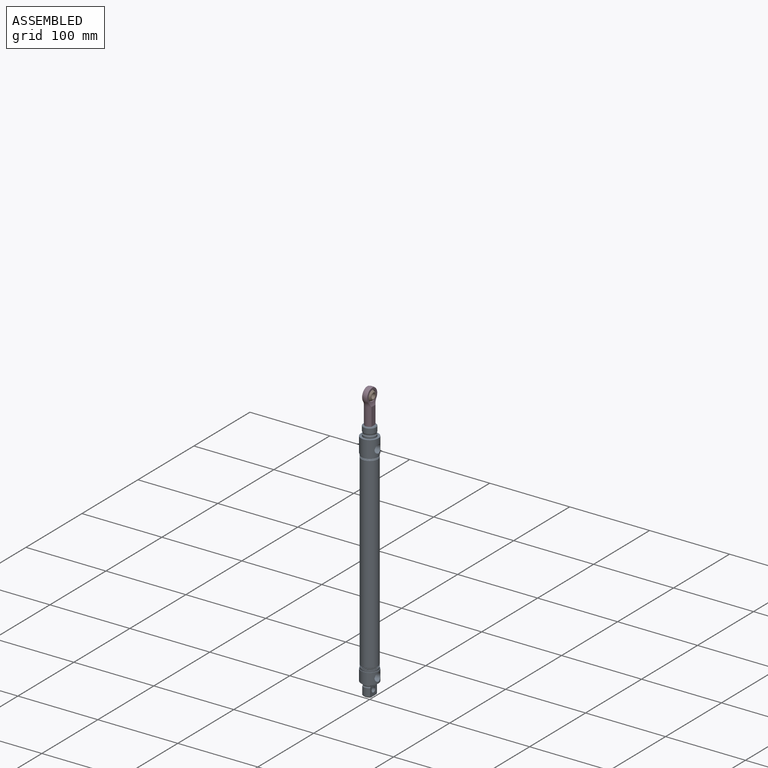
[diagram: assembled view]
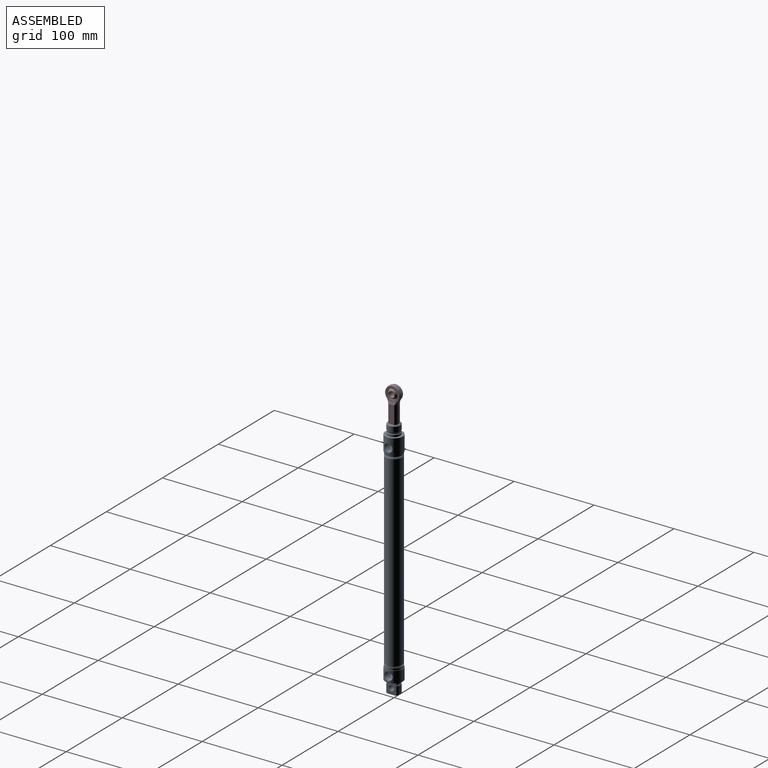
[diagram: assembled view, second angle]
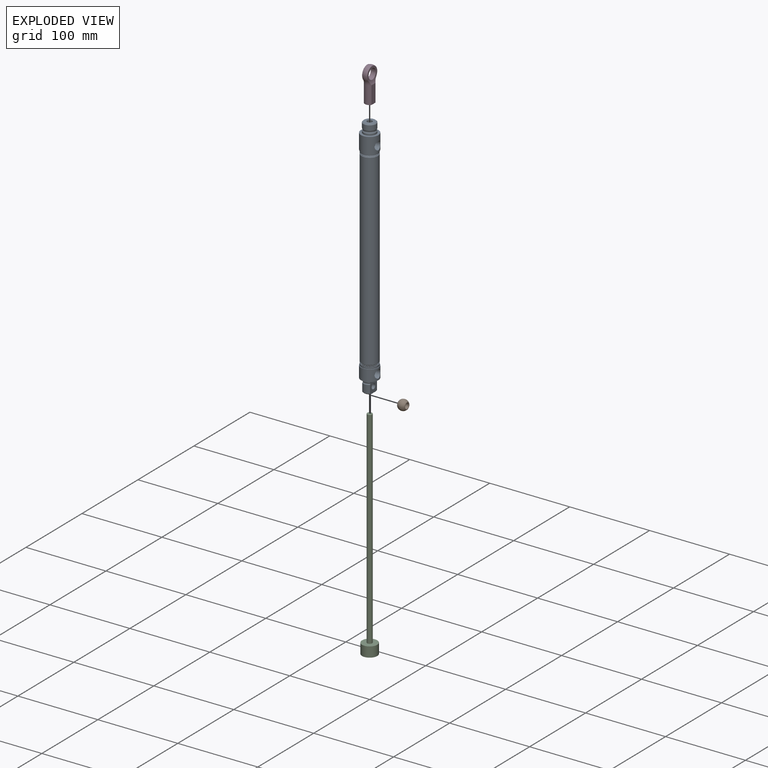
[diagram: exploded view]
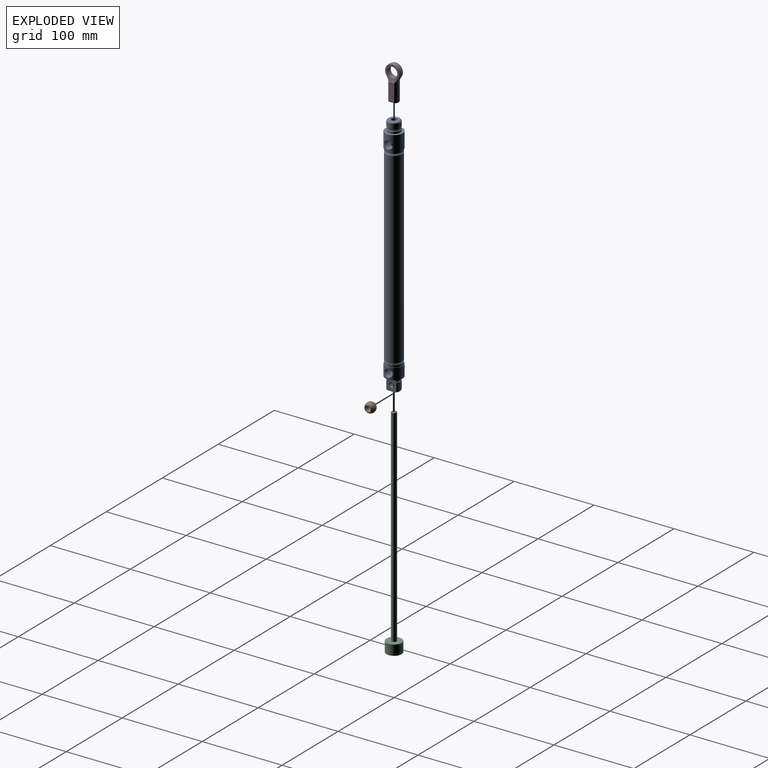
[diagram: exploded view, second angle]
ASSEMBLY  parts=4 mates=2
PART A: 50 faces, bbox 305.8x22.1x22.1 mm
  f0: torus R=8.49mm, axis (-1,0,0), area 29.4mm2, adj f1,f47,f48,f49
  f1: plane 15.97x12.83mm, normal (0,0,-1), area 162.4mm2, adj f0,f2,f3,f4,f5,f43,f44,f45
  f2: cylinder r=3.17mm len=9.65mm, axis (0,0,1), area 192.5mm2, adj f1,f48
  f3: torus R=8.49mm, axis (-1,0,0), area 29.4mm2, adj f1,f4,f46,f48
  f4: cylinder r=7.94mm len=9.65mm, axis (-1,0,0), area 25mm2, adj f1,f3,f5,f48
  f5: plane 21.84x21.84mm, normal (1,0,0), area 231.6mm2, adj f1,f4,f6,f48,f49
  f6: cylinder r=10.92mm len=21.84mm, axis (-1,0,0), area 891mm2, adj f5,f7,f11
  f7: cone r=5.14mm half-angle=1.7deg, axis (0,0,1), area 219.4mm2, adj f6,f8
  f8: plane 9.87x9.87mm, normal (0,0,1), area 20.7mm2, adj f7,f9
  f9: cylinder r=4.22mm len=8.43mm, axis (0,0,1), area 124.5mm2, adj f8,f10
  f10: cone r=4.22mm half-angle=59deg, axis (0,0,1), area 65.2mm2, adj f9
  f11: plane 21.84x21.84mm, normal (-1,0,0), area 42.3mm2, adj f6,f12
  f12: cylinder r=10.29mm len=20.57mm, axis (-1,0,0), area 164.2mm2, adj f11,f13
  f13: plane 20.57x20.57mm, normal (-1,0,0), area 47.4mm2, adj f12,f14
  f14: cone r=10.29mm half-angle=45deg, axis (-1,0,0), area 67.1mm2, adj f13,f15
  f15: cylinder r=10.29mm len=20.57mm, axis (-1,0,0), area 32.8mm2, adj f14,f16
  f16: plane 20.57x20.57mm, normal (-1,0,0), area 47.4mm2, adj f15,f17
  f17: cone r=10.29mm half-angle=45deg, axis (-1,0,0), area 67.1mm2, adj f16,f18
  f18: cylinder r=10.29mm len=234.57mm, axis (-1,0,0), area 15161.4mm2, adj f17,f19
  f19: cone r=9.4mm half-angle=45deg, axis (1,0,0), area 77.8mm2, adj f18,f20
  f20: plane 20.57x20.57mm, normal (1,0,0), area 55mm2, adj f19,f21
  f21: cylinder r=10.29mm len=20.57mm, axis (-1,0,0), area 24.6mm2, adj f20,f22
  f22: cone r=9.4mm half-angle=45deg, axis (1,0,0), area 77.8mm2, adj f21,f23
  f23: plane 20.57x20.57mm, normal (1,0,0), area 55mm2, adj f22,f24
  f24: cylinder r=10.29mm len=20.57mm, axis (-1,0,0), area 164.2mm2, adj f23,f25
  f25: plane 21.84x21.84mm, normal (1,0,0), area 42.3mm2, adj f24,f26
  f26: cylinder r=10.92mm len=21.84mm, axis (-1,0,0), area 1222.2mm2, adj f25,f27,f42
  f27: cone r=5.14mm half-angle=1.7deg, axis (0,0,1), area 219.4mm2, adj f26,f28
  f28: plane 9.87x9.87mm, normal (0,0,1), area 20.7mm2, adj f27,f29
  f29: cylinder r=4.22mm len=8.43mm, axis (0,0,1), area 79.9mm2, adj f28,f30,f31,f32
  f30: cone r=4.22mm half-angle=59deg, axis (0,0,1), area 0mm2, adj f29,f32
  f31: cone r=4.22mm half-angle=59deg, axis (0,0,1), area 0mm2, adj f29,f32
  f32: cylinder r=3.17mm len=43.31mm, axis (1,0,0), area 778.9mm2, adj f29,f30,f31,f33,f38,f39
  f33: plane 13.84x13.84mm, normal (-1,0,0), area 118.8mm2, adj f32,f34
  f34: cone r=6.92mm half-angle=45deg, axis (1,0,0), area 67.1mm2, adj f33,f35
  f35: cylinder r=7.94mm len=15.88mm, axis (-1,0,0), area 316.7mm2, adj f34,f36
  f36: torus R=9.28mm, axis (-1,0,0), area 162.1mm2, adj f35,f37
  f37: cylinder r=7.94mm len=15.88mm, axis (-1,0,0), area 114mm2, adj f36,f42
  f38: cone r=4.22mm half-angle=59deg, axis (0,0,1), area 0mm2, adj f32
  f39: plane 19.05x19.05mm, normal (1,0,0), area 253.4mm2, adj f32,f40
  f40: cylinder r=9.53mm len=215.9mm, axis (1,0,0), area 12921mm2, adj f39,f41
  f41: plane 19.05x19.05mm, normal (-1,0,0), area 285mm2, adj f40
  f42: plane 21.84x21.84mm, normal (-1,0,0), area 176.8mm2, adj f26,f37
  f43: cone r=7.94mm half-angle=45deg, axis (-1,0,0), area 15.2mm2, adj f1,f44,f47,f48
  f44: plane 13.84x9.65mm, normal (1,0,0), area 121.8mm2, adj f1,f43,f45,f48
  f45: cone r=7.94mm half-angle=45deg, axis (-1,0,0), area 15.2mm2, adj f1,f44,f46,f48
  f46: cylinder r=7.94mm len=10.03mm, axis (-1,0,0), area 104.1mm2, adj f1,f3,f45,f48
  f47: cylinder r=7.94mm len=10.03mm, axis (-1,0,0), area 104.1mm2, adj f0,f1,f43,f48
  f48: plane 15.97x12.83mm, normal (0,0,1), area 162.4mm2, adj f0,f2,f3,f4,f5,f43,f44,f45
  f49: cylinder r=7.94mm len=9.65mm, axis (-1,0,0), area 25mm2, adj f0,f1,f5,f48
PART B: 6 faces, bbox 12.7x12.7x9.5 mm
  f0: cone r=3.49mm half-angle=45deg, axis (0,0,1), area 9.4mm2, adj f2,f4
  f1: cone r=3.49mm half-angle=45deg, axis (0,0,-1), area 9.4mm2, adj f2,f5
  f2: cylinder r=3.17mm len=8.89mm, axis (0,0,1), area 177.3mm2, adj f0,f1
  f3: sphere r=6.35mm, area 380mm2, adj f4,f5
  f4: plane 8.4x8.4mm, normal (0,0,1), area 17.1mm2, adj f0,f3
  f5: plane 8.4x8.4mm, normal (0,0,-1), area 17.1mm2, adj f1,f3
PART C: 6 faces, bbox 271.9x19.1x19.1 mm
  f0: cone r=2.67mm half-angle=45deg, axis (1,0,0), area 13.2mm2, adj f2,f3
  f1: cylinder r=9.53mm len=19.05mm, axis (1,0,0), area 760.1mm2, adj f4,f5
  f2: cylinder r=3.17mm len=258.7mm, axis (1,0,0), area 5160.8mm2, adj f0,f4
  f3: plane 5.33x5.33mm, normal (-1,0,0), area 22.3mm2, adj f0
  f4: plane 19.05x19.05mm, normal (-1,0,0), area 253.4mm2, adj f1,f2
  f5: plane 19.05x19.05mm, normal (1,0,0), area 285mm2, adj f1
PART D: 19 faces, bbox 19.4x43.2x15.5 mm
  f0: cylinder r=6.41mm len=12.83mm, axis (0,0,1), area 255.9mm2, adj f15,f16,f17,f18
  f1: sphere r=9.53mm, area 271.3mm2, adj f2,f6,f15,f16,f17,f18
  f2: torus R=15.47mm, axis (0,-1,0), area 52.1mm2, adj f1,f8,f17,f18
  f3: cylinder r=3.17mm len=17.01mm, axis (0,-1,0), area 42.4mm2, adj f4,f9,f10,f12
  f4: cone r=3.63mm half-angle=45deg, axis (0,-1,0), area 21.4mm2, adj f3,f7,f10,f11,f12
  f5: cylinder r=5.94mm len=22.22mm, axis (0,1,0), area 245.5mm2, adj f6,f7,f13,f14
  f6: torus R=15.47mm, axis (0,-1,0), area 52.1mm2, adj f1,f5,f17,f18
  f7: plane 11.89x9.53mm, normal (0,-1,0), area 58.2mm2, adj f4,f5,f8,f13,f14
  f8: cylinder r=5.94mm len=22.22mm, axis (0,1,0), area 245.5mm2, adj f2,f7,f13,f14
  f9: plane 6.16x6.13mm, normal (0,-1,0), area 26.2mm2, adj f3,f10,f11,f12
  f10: bspline ~17.35x6.35mm, area 227.2mm2, adj f3,f4,f9,f11
  f11: cylinder r=2.59mm len=16.42mm, axis (0,1,0), area 33.2mm2, adj f4,f9,f10,f12
  f12: bspline ~17.91x6.35mm, area 226.8mm2, adj f3,f4,f9,f11
  f13: plane 22.22x7.11mm, normal (0,0,1), area 158mm2, adj f5,f7,f8,f17
  f14: plane 22.22x7.11mm, normal (0,0,-1), area 158mm2, adj f5,f7,f8,f18
  f15: plane 17.96x13mm, normal (0,0,1), area 83.8mm2, adj f0,f1,f17
  f16: plane 17.96x13mm, normal (0,0,-1), area 83.8mm2, adj f0,f1,f18
  f17: cylinder r=16.67mm len=16.06mm, axis (-1,0,0), area 67.8mm2, adj f0,f1,f2,f6,f13,f15
  f18: cylinder r=16.67mm len=16.06mm, axis (1,0,0), area 67.8mm2, adj f0,f1,f2,f6,f14,f16
PLACE A rot(axis=(0,1,0),90deg) t=(0,0,0)mm fixed
PLACE B rot(axis=(0.58,0.58,0.58),120deg) t=(0,0,17.46)mm
PLACE C rot(axis=(0.58,0.58,-0.58),120deg) t=(0,0,368.57)mm
PLACE D rot(axis=(0.58,0.58,0.58),120deg) t=(0,0,17.46)mm
MATE slider C.f0 <-> A.f0  axis (0,0,1) through (0,0,12.7)mm
MATE fastened D.f2 <-> C.f0  axis (0,0,-1) through (0,0,0)mm
